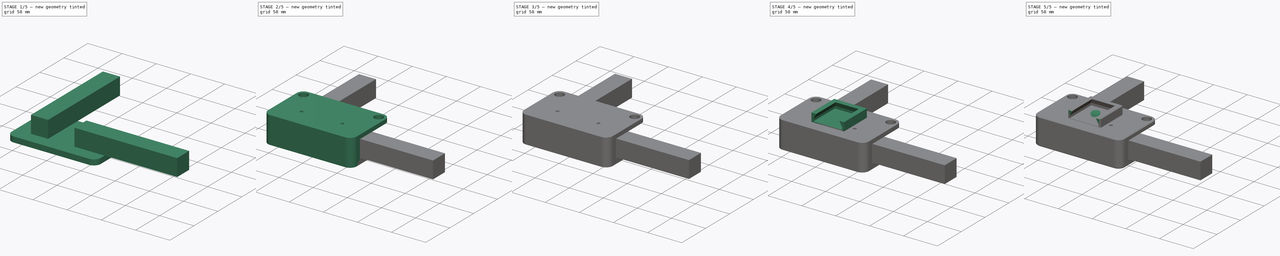
[diagram: build sequence overview — one tinted view per stage of 5, left to right]
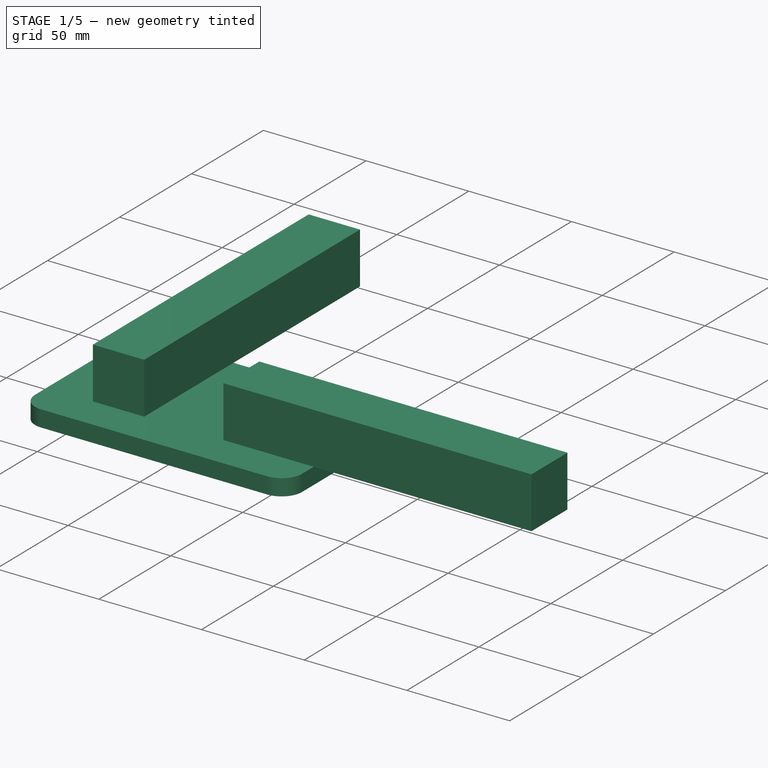
[diagram: stage 1 of 5 — iso view after this stage's code; geometry added in this stage tinted green]
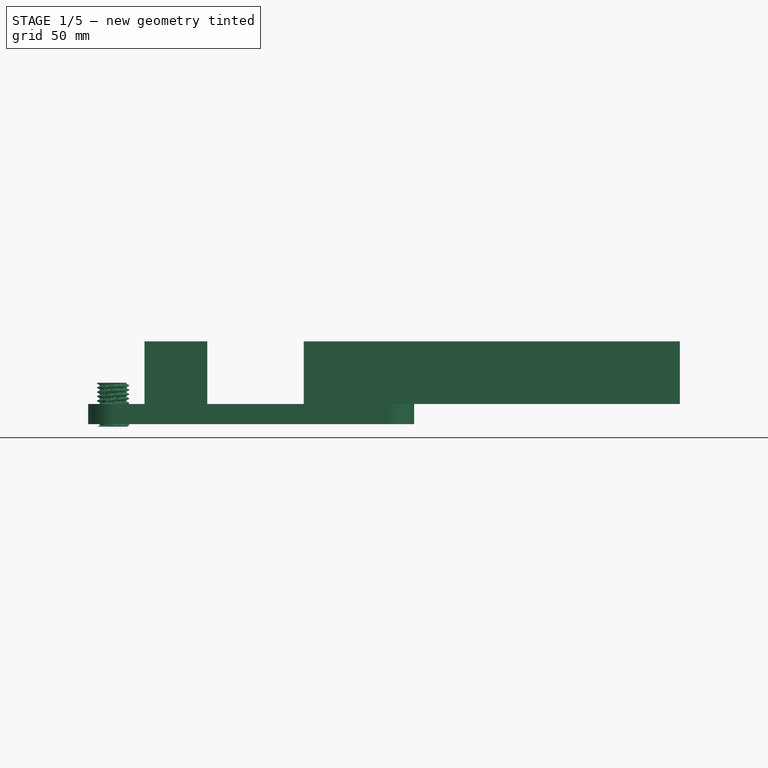
[diagram: stage 1 of 5 — front view after this stage's code; geometry added in this stage tinted green]
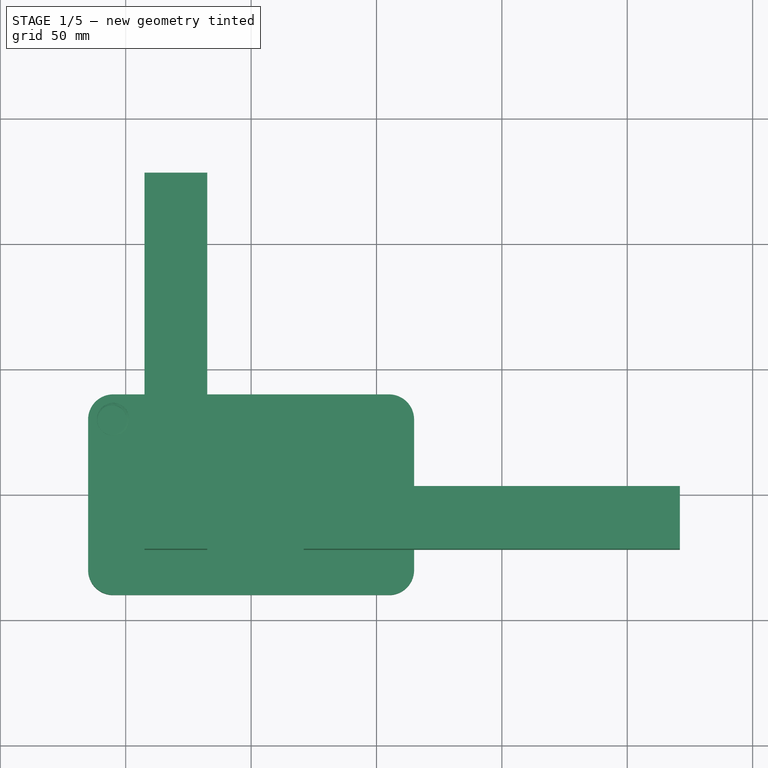
[diagram: stage 1 of 5 — top view after this stage's code; geometry added in this stage tinted green]
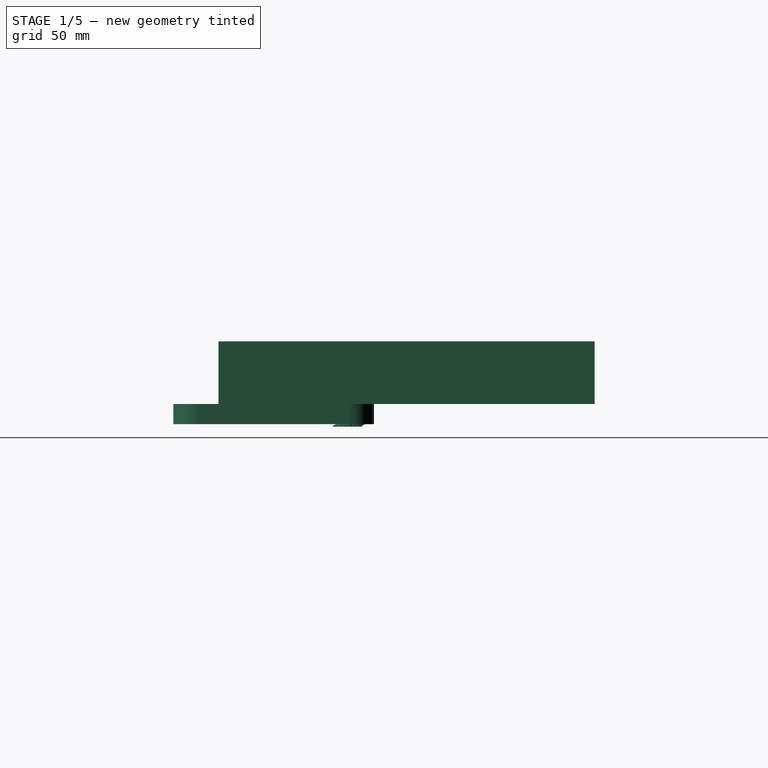
[diagram: stage 1 of 5 — right view after this stage's code; geometry added in this stage tinted green]
FCSTD DOCUMENT  (FreeCAD 0.19R22960 (Git))
Label: arm mount
License: All rights reserved
LicenseURL: http://en.wikipedia.org/wiki/All_rights_reserved
objects: Sketcher::SketchObject×9, PartDesign::Pad×6, PartDesign::Body×4, PartDesign::Mirrored×3, Part::Box×3, Part::FeaturePython×3, Part::Cut×3, PartDesign::Pocket×2, Part::MultiFuse×2, Part::Part2DObjectPython×2, Part::Helix×2, PartDesign::AdditiveLoft×1, Spreadsheet::Sheet×1, PartDesign::FeatureBase×1, Part::Offset×1, PartDesign::Plane×1, PartDesign::PolarPattern×1, PartDesign::ShapeBinder×1, PartDesign::AdditivePipe×1, Part::Sweep×1, +1 more types
note: 58 computed .brp shape members not serialized (recipe doc carries the construction recipe); baked Part::Feature solids carry a one-line shape summary decoded from their .brp

FEATURE [PartDesign::Body] Body001  label="Body003"
  BaseFeature = -> Body
  Group = -> [Clone]
  Origin = -> Origin
  Tip = -> Clone
FEATURE [Sketcher::SketchObject] Sketch002
  MapMode = 5
  Support = -> [XY_Plane002]
  sketch-geometry (8):
    g0: LineSegment StartX=-55 StartY=40 StartZ=0 EndX=55 EndY=40 EndZ=0
    g1: LineSegment StartX=65 StartY=30 StartZ=0 EndX=65 EndY=-30 EndZ=0
    g2: LineSegment StartX=55 StartY=-40 StartZ=0 EndX=-55 EndY=-40 EndZ=0
    g3: LineSegment StartX=-65 StartY=-30 StartZ=0 EndX=-65 EndY=30 EndZ=0
    g4: ArcOfCircle CenterX=-55 CenterY=30 CenterZ=0 NormalX=0 NormalY=0 NormalZ=1 AngleXU=0 Radius=10 StartAngle=1.5708 EndAngle=3.14159
    g5: ArcOfCircle CenterX=55 CenterY=30 CenterZ=0 NormalX=0 NormalY=0 NormalZ=1 AngleXU=0 Radius=10 StartAngle=0 EndAngle=1.5708
    g6: ArcOfCircle CenterX=55 CenterY=-30 CenterZ=0 NormalX=0 NormalY=0 NormalZ=1 AngleXU=0 Radius=10 StartAngle=4.71239 EndAngle=6.28319
    g7: ArcOfCircle CenterX=-55 CenterY=-30 CenterZ=0 NormalX=0 NormalY=0 NormalZ=1 AngleXU=0 Radius=10 StartAngle=3.14159 EndAngle=4.71239
  constraints (18):
    c: Horizontal(g2)
    c: Vertical(g1)
    c: Vertical(g3)
    c: Tangent(g3,g4) = 1.5708
    c: Tangent(g0,g4) = 1.5708
    c: Tangent(g0,g5) = 1.5708
    c: Tangent(g1,g5) = 1.5708
    c: Tangent(g1,g6) = 1.5708
    c: Tangent(g2,g6) = 1.5708
    c: Tangent(g2,g7) = 1.5708
    c: Tangent(g3,g7) = 1.5708
    c: Equal(g4,g7)
    c: Equal(g7,g6)
    c: Symmetric(g2,g0,g-1)
    c: Symmetric(g0,g0,g-2)
    c: DistanceX(g3,g1) = 130
    c: DistanceY(g2,g0) = 80
    c: Radius(g5) = 10
FEATURE [PartDesign::Pad] Pad001
  Direction = (1,1,1)
  Length = 8
  Length2 = 100
  Profile = -> Sketch002
  Refine = true
  Type = 0
FEATURE [Sketcher::SketchObject] Sketch003
  MapMode = 5
  Support = -> [XY_Plane002]
  sketch-geometry (1):
    g0: Circle CenterX=-30 CenterY=-10 CenterZ=0 NormalX=0 NormalY=0 NormalZ=1 AngleXU=0 Radius=1.9
  constraints (3):
    c: Diameter(g0) = 3.8
    c: DistanceX(g0) = -30
    c: DistanceY(g0) = -10
FEATURE [PartDesign::Pocket] Pocket
  BaseFeature = -> Pad001
  Length = 5
  Length2 = 100
  Profile = -> Sketch003
  Refine = true
  Reversed = true
  Type = 1
FEATURE [PartDesign::Body] Body003  label="button"
  Group = -> [Sketch008,Pad005,DatumPlane001,Sketch007,Pad004,PolarPattern,VThreadProfile,AdditivePipe]
  Origin = -> Origin003
  Placement = pos=(-85.5,0,0) rot=(0,0,1;0rad)
  Tip = -> AdditivePipe
FEATURE [Part::Part2DObjectPython] VThreadProfile001  # Draft 2D object (typed FeaturePython)
  Area = 89.3381
  Closed = true
  Continuity = C3
  Instructions = Expand this with the ... button to view instructions | Sweep this object along a helix of the same pitch to produce your thread. | It is recommended to make the helix in the ThreadProfile workbench. | If there is an active Body the ThreadProfile object will be put into it.,If not it can be dragged and dropped into the body later. | If there is an active Body when the helix is made there will be made a ShapeBinder for it | For internal threads you will need to cut the Sweep object out of a cylinder, or if using Part Design sweep it as a Subtractive Pipe. | Always use Frenet mode | I have provided some presets, but it is possible there could be some errors.  Double check for mission critical applications. | Also, the tolerances might be different from what you wish to have.  I believe the internal minor diameters are all minimum and the external are all maximum.
  InternalOrExternal = 1
  MakeFace = true
  MinorDiameter = 9.853
  Parameterization = 1
  Pitch = 1.75
  Points = (719) [(4.92219,0.0430151,0),(4.91768,0.0859578,0),(4.91295,0.128829,0),(4.90799,0.171629,0),(4.90279,0.214358,0),(4.89733,0.257016,0),(4.89163,0.299602,0),+712 more]
  Presets = 22
  Quality = 1
  ThreadCount = 10
  Version = 1.66
  external_data = [-0.00235387,-0.00461052,-0.00677828,-0.00886428,-0.0108747,-0.0128149,-0.0146895,-0.0165028,-0.0182584,-0.0199597,-0.0216095,-0.0232106,-0.0247653,-0.0262759,-0.0277444,-0.0291725,-0.0305621,-0.0319145,-0.0332313,-0.0345138,-0.0357632,+698 more]
  internal_data = [0,0,0,0,0,0,0,0,0,0,0,0,0,0,0,0,0,0,0,0,0,0,0,0,0,0,0,0,0,0,0,0,0,0,0,0,0,0,0,0,0,0,0,0,0,0,0,0,0,0,0,0,0,0,0,0,0,0,0,0,0,0,0,0,0,0,0,0,0,0,0,0,0,0,0,0,0,0,0,0,0,0,0,0,0,0,0,0,0,0,0,0,0,0,0,0,0,0,0,0,0,0,0,0,0,0,0,0,0,0,0,0,0,0,0,0,0,0,0,0,+599 more]
  preset_names = <blob: 3959 chars omitted>
  presets_data = [0,0,0,2.20878,24.1173,24.6888,0.25,0.693,0.729,0.25,0.793,0.829,0.25,0.893,0.929,0.3,1.032,1.075,0.35,1.171,1.221,0.35,1.371,1.421,0.4,1.509,1.567,0.45,1.648,1.713,0.45,1.948,2.013,0.5,2.387,2.459,0.6,2.764,2.85,0.7,3.141,3.242,0.75,3.58,+712 more]
FEATURE [Part::Helix] Helix001
  Angle = 0
  AttacherType = Attacher::AttachEngine3D
  Height = 17.5
  LocalCoord = 0
  Pitch = 1.75
  Radius = 1
  Style = 0
  expr: Pitch = VThreadProfile001.Pitch
  expr: Height = VThreadProfile001.ThreadCount * VThreadProfile001.Pitch
  expr: .Placement.Base.x = VThreadProfile001.Placement.Base.x
  expr: .Placement.Base.y = VThreadProfile001.Placement.Base.y
  expr: .Placement.Base.z = VThreadProfile001.Placement.Base.z
  expr: .Placement.Rotation.Angle = VThreadProfile001.Placement.Rotation.Angle
  expr: .Placement.Rotation.Axis.x = VThreadProfile001.Placement.Rotation.Axis.x
  expr: .Placement.Rotation.Axis.y = VThreadProfile001.Placement.Rotation.Axis.y
  expr: .Placement.Rotation.Axis.z = VThreadProfile001.Placement.Rotation.Axis.z
FEATURE [Part::Sweep] Sweep  label="M12 screw"
  Frenet = true
  Sections = -> [VThreadProfile001]
  Solid = true
  Spine = -> Helix001 [Edge1,Edge2,Edge3,Edge4,Edge5,Edge6,Edge7,Edge8,Edge9,Edge10]
  Transition = 1
FEATURE [Part::FeaturePython] Clone002  label="M6 screw hole"  # Draft clone (typed FeaturePython)
  AttacherType = Attacher::AttachEngine3D
  Fuse = false
  Objects = -> [Sweep]
  Placement = pos=(-55,30,-1) rot=(0,0,1;0rad)
  Scale = (1.1,1.1,1)
FEATURE [Part::Box] Box001  label="rod"
  AttacherType = Attacher::AttachEngine3D
  Height = 25
  Length = 150
  Placement = pos=(21,-22,8) rot=(0,0,1;0rad)
  Width = 25
FEATURE [Part::Box] Box002  label="rod001"
  AttacherType = Attacher::AttachEngine3D
  Height = 25
  Length = 150
  Placement = pos=(-17.5,-22,8) rot=(0,0,1;1.5708rad)
  Width = 25
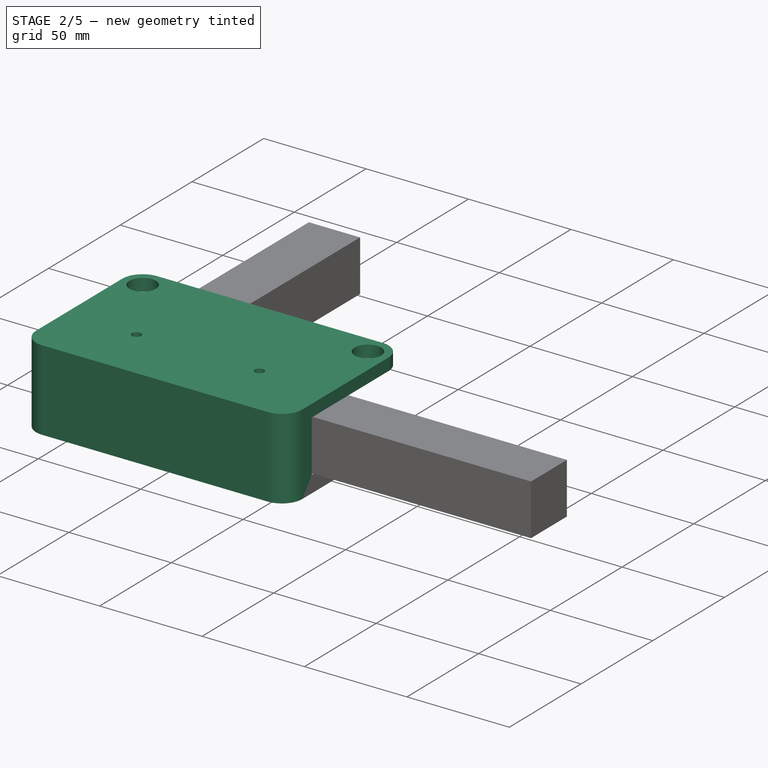
[diagram: stage 2 of 5 — iso view after this stage's code; geometry added in this stage tinted green]
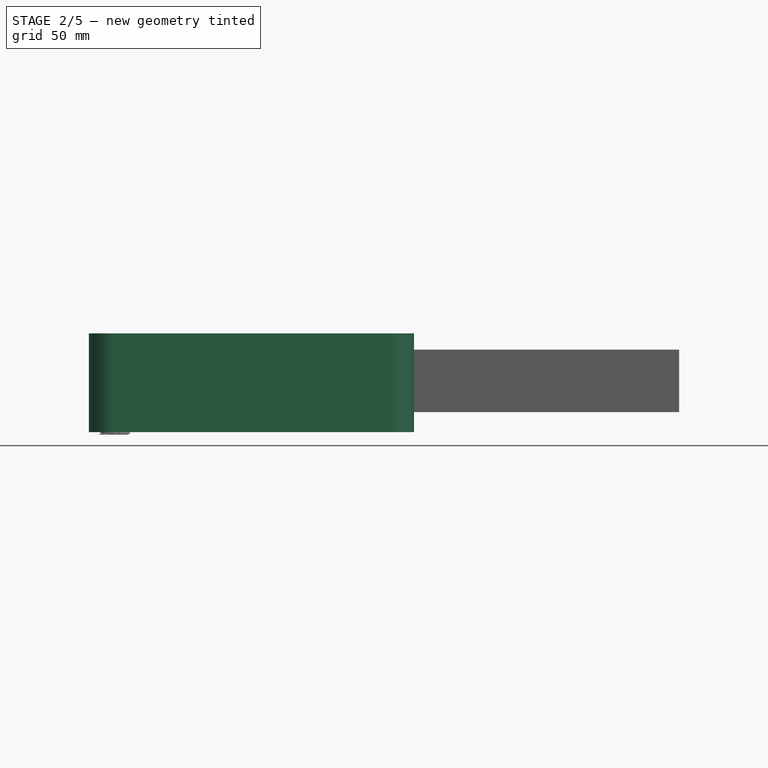
[diagram: stage 2 of 5 — front view after this stage's code; geometry added in this stage tinted green]
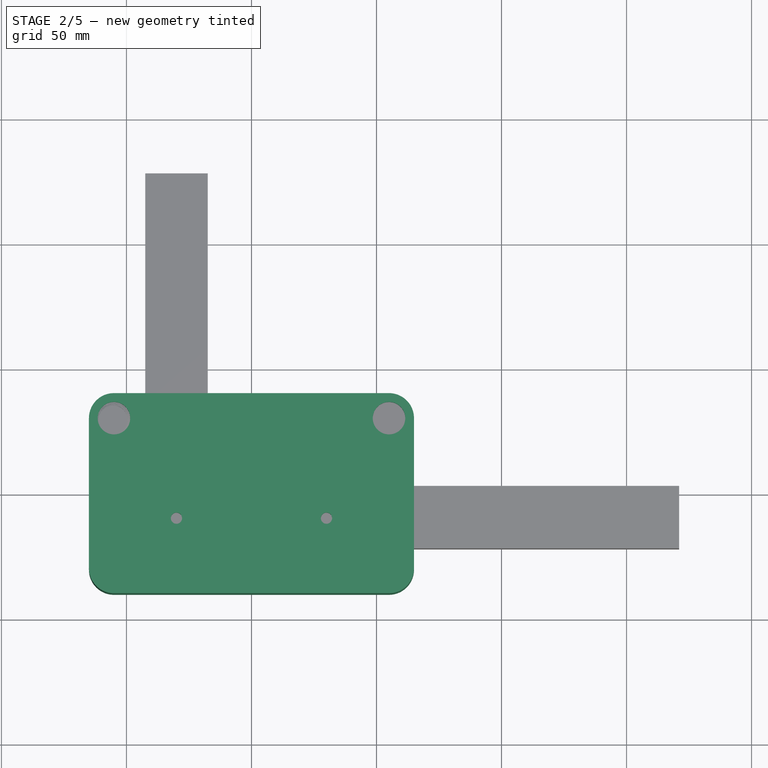
[diagram: stage 2 of 5 — top view after this stage's code; geometry added in this stage tinted green]
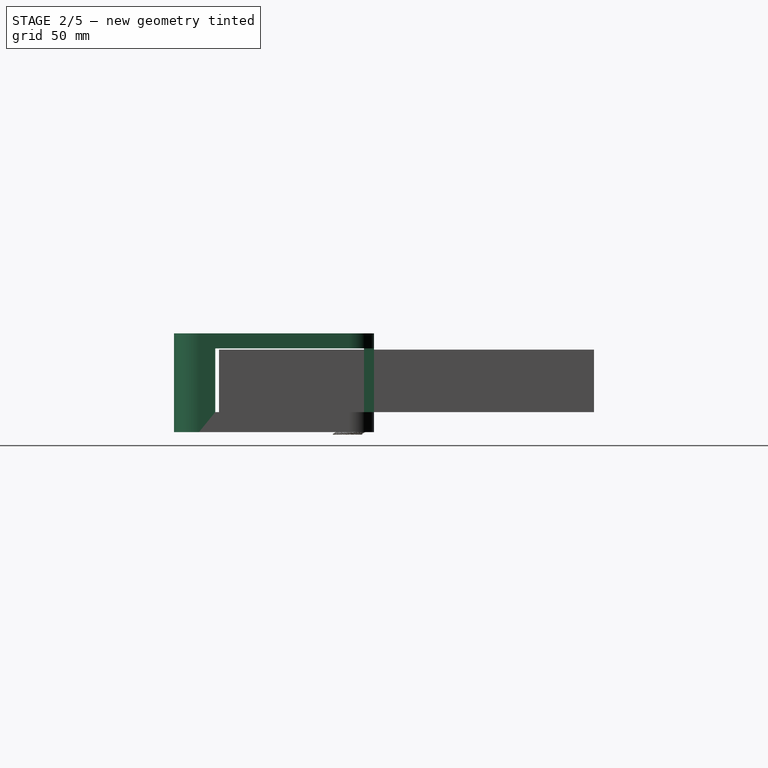
[diagram: stage 2 of 5 — right view after this stage's code; geometry added in this stage tinted green]
FEATURE [PartDesign::Mirrored] Mirrored
  BaseFeature = -> Pocket
  MirrorPlane = -> Sketch003 [V_Axis]
  Originals = -> [Pocket]
  Refine = true
FEATURE [Sketcher::SketchObject] Sketch004
  AttachmentOffset = pos=(0,0,8) rot=(0,0,1;0rad)
  ExternalGeometry = -> [Mirrored]
  MapMode = 5
  Placement = pos=(0,0,8) rot=(0,0,1;0rad)
  Support = -> [XY_Plane002]
  expr: .AttachmentOffset.Base.z = Pad001.Length
  expr: Constraints[28] = .Constraints.hole_clearance
  sketch-geometry (12):
    g0: ArcOfCircle CenterX=-55 CenterY=-30 CenterZ=0 NormalX=0 NormalY=0 NormalZ=1 AngleXU=0 Radius=10 StartAngle=3.14159 EndAngle=4.71239
    g1: ArcOfCircle CenterX=-51 CenterY=-26 CenterZ=0 NormalX=0 NormalY=0 NormalZ=1 AngleXU=0 Radius=10 StartAngle=3.14159 EndAngle=4.71239
    g2: LineSegment StartX=-65 StartY=-30 StartZ=0 EndX=-65 EndY=-23.5 EndZ=0
    g3: LineSegment StartX=-65 StartY=-23.5 StartZ=0 EndX=-61 EndY=-23.5 EndZ=0
    g4: LineSegment StartX=-61 StartY=-23.5 StartZ=0 EndX=-61 EndY=-26 EndZ=0
    g5: LineSegment StartX=-55 StartY=-40 StartZ=0 EndX=0 EndY=-40 EndZ=0
    g6: LineSegment StartX=0 StartY=-40 StartZ=0 EndX=0 EndY=-36 EndZ=0
    g7: LineSegment StartX=0 StartY=-36 StartZ=0 EndX=-51 EndY=-36 EndZ=0
    g8: LineSegment StartX=0 StartY=40 StartZ=0 EndX=-16.5 EndY=40 EndZ=0
    g9: LineSegment StartX=-16.5 StartY=40 StartZ=0 EndX=-16.5 EndY=36 EndZ=0
    g10: LineSegment StartX=-16.5 StartY=36 StartZ=0 EndX=0 EndY=36 EndZ=0
    g11: LineSegment StartX=0 StartY=36 StartZ=0 EndX=0 EndY=40 EndZ=0
  constraints (32):
    c: Coincident(g0,g-4)
    c: Coincident(g0,g-3)
    c: Equal(g-6,g0)
    c: Tangent(g0,g2) = 1.5708
    c: Coincident(g2,g3)
    c: Coincident(g3,g4)
    c: Vertical(g4)
    c: Horizontal(g3)
    c: Tangent(g0,g5) = -1.5708
    c: Coincident(g5,g6)
    c: PointOnObject(g6,g-2)
    c: Vertical(g6)
    c: Coincident(g6,g7)
    c: Horizontal(g7)
    c: DistanceY(g5,g6) = 4
    c: Equal(g6,g3)
    c: DistanceY(g3,g-7) = 13.5  'hole_clearance'
    c: Coincident(g8,g9)
    c: Coincident(g9,g10)
    c: Coincident(g10,g11)
    c: Coincident(g11,g8)
    c: Horizontal(g8)
    c: Horizontal(g10)
    c: Vertical(g9)
    c: Vertical(g11)
    c: PointOnObject(g8,g-5)
    c: PointOnObject(g8,g-2)
    c: Equal(g11,g6)
    c: DistanceX(g-7,g9) = 13.5
    c: Equal(g1,g0)
    c: Tangent(g7,g1) = 1.5708
    c: Tangent(g4,g1) = -1.5708
FEATURE [PartDesign::Pad] Pad002
  BaseFeature = -> Mirrored
  Direction = (1,1,1)
  Length = 25.5
  Length2 = 100
  Profile = -> Sketch004
  Refine = true
  Type = 0
FEATURE [PartDesign::Mirrored] Mirrored001
  BaseFeature = -> Pad002
  MirrorPlane = -> Sketch004 [V_Axis]
  Originals = -> [Pad002]
  Refine = true
FEATURE [Sketcher::SketchObject] Sketch005
  AttachmentOffset = pos=(0,0,33.5) rot=(0,0,1;0rad)
  ExternalGeometry = -> [Mirrored001]
  MapMode = 5
  Placement = pos=(0,0,33.5) rot=(0,0,1;0rad)
  Support = -> [XY_Plane002]
  expr: .AttachmentOffset.Base.z = Pad001.Length + Pad002.Length
  sketch-geometry (8):
    g0: LineSegment StartX=-55 StartY=40 StartZ=0 EndX=55 EndY=40 EndZ=0
    g1: LineSegment StartX=55 StartY=-40 StartZ=0 EndX=-55 EndY=-40 EndZ=0
    g2: ArcOfCircle CenterX=-55 CenterY=30 CenterZ=0 NormalX=0 NormalY=0 NormalZ=1 AngleXU=0 Radius=10 StartAngle=1.5708 EndAngle=3.14159
    g3: ArcOfCircle CenterX=55 CenterY=30 CenterZ=0 NormalX=0 NormalY=0 NormalZ=1 AngleXU=0 Radius=10 StartAngle=0 EndAngle=1.5708
    g4: ArcOfCircle CenterX=55 CenterY=-30 CenterZ=0 NormalX=0 NormalY=0 NormalZ=1 AngleXU=0 Radius=10 StartAngle=4.71239 EndAngle=6.28319
    g5: ArcOfCircle CenterX=-55 CenterY=-30 CenterZ=0 NormalX=0 NormalY=0 NormalZ=1 AngleXU=0 Radius=10 StartAngle=3.14159 EndAngle=4.71239
    g6: LineSegment StartX=65 StartY=30 StartZ=0 EndX=65 EndY=-30 EndZ=0
    g7: LineSegment StartX=-65 StartY=30 StartZ=0 EndX=-65 EndY=-30 EndZ=0
  constraints (20):
    c: Coincident(g0,g-3)
    c: Coincident(g0,g-5)
    c: Coincident(g1,g-6)
    c: Coincident(g1,g-6)
    c: Coincident(g2,g0)
    c: Coincident(g3,g0)
    c: Coincident(g4,g1)
    c: Coincident(g4,g-8)
    c: Coincident(g5,g1)
    c: Coincident(g5,g-7)
    c: Equal(g4,g5)
    c: Equal(g5,g2)
    c: Equal(g2,g3)
    c: Equal(g3,g-5)
    c: Coincident(g2,g-7)
    c: Coincident(g3,g-8)
    c: Coincident(g6,g3)
    c: Coincident(g6,g4)
    c: Coincident(g7,g2)
    c: Coincident(g7,g5)
FEATURE [PartDesign::Pad] Pad003
  BaseFeature = -> Mirrored001
  Direction = (1,1,1)
  Length = 6
  Length2 = 100
  Profile = -> Sketch005
  Refine = true
  Type = 0
FEATURE [Sketcher::SketchObject] Sketch006
  AttachmentOffset = pos=(0,0,39.5) rot=(0,0,1;0rad)
  ExternalGeometry = -> [Pad003]
  MapMode = 5
  Placement = pos=(0,0,39.5) rot=(0,0,1;0rad)
  Support = -> [XY_Plane002]
  expr: .AttachmentOffset.Base.z = Pad001.Length + Pad002.Length + Pad003.Length
  sketch-geometry (2):
    g0: Circle CenterX=-30 CenterY=-10 CenterZ=0 NormalX=0 NormalY=0 NormalZ=1 AngleXU=0 Radius=2.25
    g1: Circle CenterX=-55 CenterY=30 CenterZ=0 NormalX=0 NormalY=0 NormalZ=1 AngleXU=0 Radius=6.5
  constraints (6):
    c: Coincident(g0,g-3)
    c: Diameter(g0) = 4.5
    c: Coincident(g1,g-4)
    c: Diameter(g1) = 13
    c: DistanceX(g1,g-1) = 55
    c: DistanceY(g-1,g1) = 30
FEATURE [PartDesign::Pocket] Pocket001
  BaseFeature = -> Pad003
  Length = 5
  Length2 = 100
  Profile = -> Sketch006
  Refine = true
  Type = 2
FEATURE [PartDesign::Mirrored] Mirrored002
  BaseFeature = -> Pocket001
  MirrorPlane = -> Sketch006 [V_Axis]
  Originals = -> [Pocket001]
  Refine = true
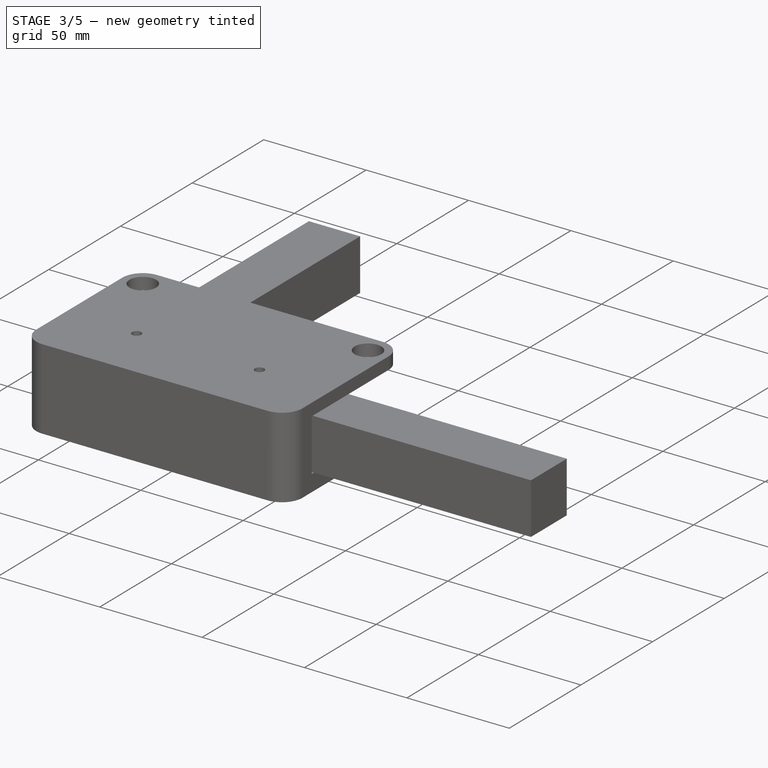
[diagram: stage 3 of 5 — iso view after this stage's code; geometry added in this stage tinted green]
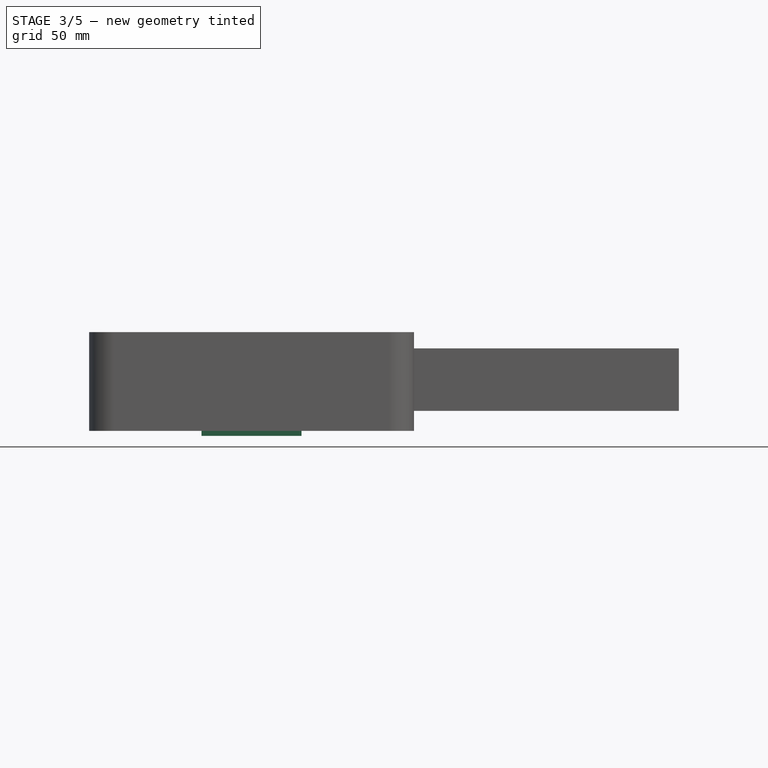
[diagram: stage 3 of 5 — front view after this stage's code; geometry added in this stage tinted green]
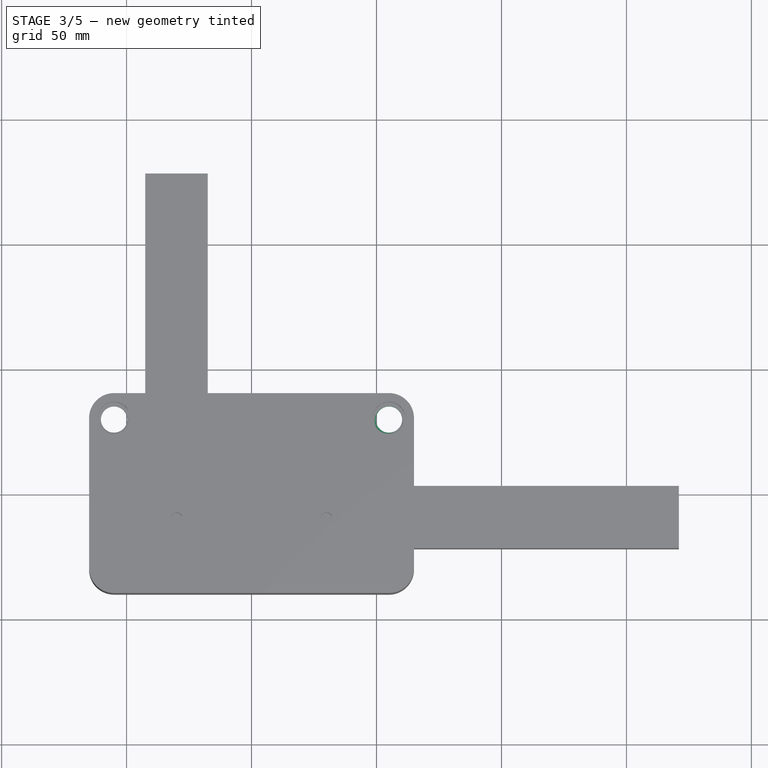
[diagram: stage 3 of 5 — top view after this stage's code; geometry added in this stage tinted green]
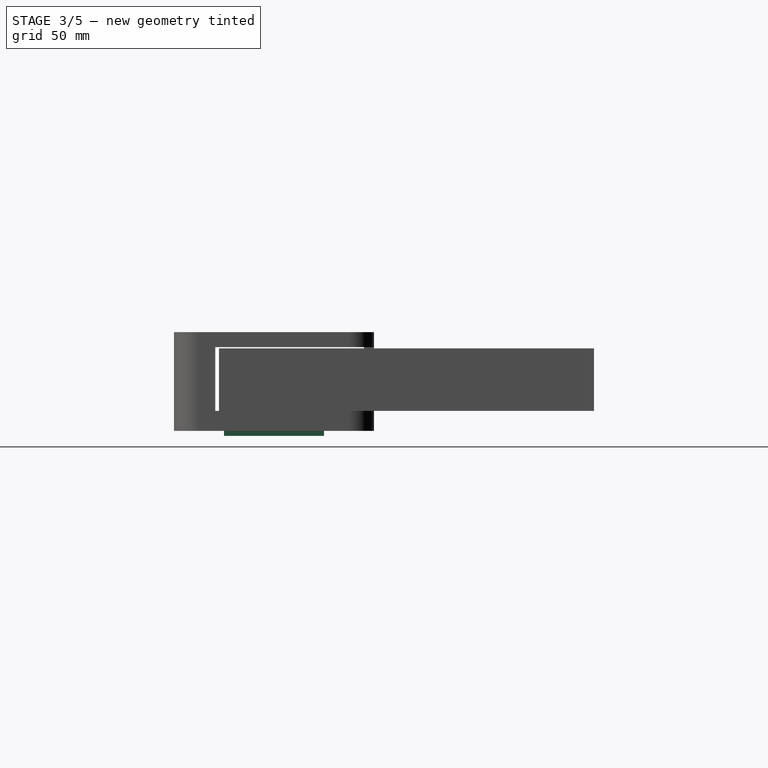
[diagram: stage 3 of 5 — right view after this stage's code; geometry added in this stage tinted green]
FEATURE [Sketcher::SketchObject] Sketch001  label="lock raise sk"
  AttachmentOffset = pos=(0,0,7) rot=(0,0,1;0rad)
  MapMode = 5
  Placement = pos=(0,0,7) rot=(0,0,1;0rad)
  Support = -> [XY_Plane001]
  expr: .AttachmentOffset.Base.z = <<dim>>.lock_raise_z
  expr: Constraints[9] = <<dim>>.lock_raise_x
  expr: Constraints[10] = <<dim>>.lock_raise_y
  sketch-geometry (4):
    g0: LineSegment StartX=-16 StartY=16 StartZ=0 EndX=16 EndY=16 EndZ=0
    g1: LineSegment StartX=16 StartY=16 StartZ=0 EndX=16 EndY=-16 EndZ=0
    g2: LineSegment StartX=16 StartY=-16 StartZ=0 EndX=-16 EndY=-16 EndZ=0
    g3: LineSegment StartX=-16 StartY=-16 StartZ=0 EndX=-16 EndY=16 EndZ=0
  constraints (11):
    c: Coincident(g0,g1)
    c: Coincident(g1,g2)
    c: Coincident(g2,g3)
    c: Coincident(g3,g0)
    c: Horizontal(g0)
    c: Horizontal(g2)
    c: Vertical(g1)
    c: Vertical(g3)
    c: Symmetric(g0,g1,g-1)
    c: DistanceX(g0,g0) = 32
    c: DistanceY(g1,g1) = 32
FEATURE [Sketcher::SketchObject] Sketch  label="lock base sk"
  MapMode = 5
  Support = -> [XY_Plane001]
  expr: Constraints[9] = <<dim>>.lock_base_x
  expr: Constraints[10] = <<dim>>.lock_base_y
  sketch-geometry (4):
    g0: LineSegment StartX=-20 StartY=20 StartZ=0 EndX=20 EndY=20 EndZ=0
    g1: LineSegment StartX=20 StartY=20 StartZ=0 EndX=20 EndY=-20 EndZ=0
    g2: LineSegment StartX=20 StartY=-20 StartZ=0 EndX=-20 EndY=-20 EndZ=0
    g3: LineSegment StartX=-20 StartY=-20 StartZ=0 EndX=-20 EndY=20 EndZ=0
  constraints (11):
    c: Coincident(g0,g1)
    c: Coincident(g1,g2)
    c: Coincident(g2,g3)
    c: Coincident(g3,g0)
    c: Horizontal(g0)
    c: Horizontal(g2)
    c: Vertical(g1)
    c: Vertical(g3)
    c: Symmetric(g0,g1,g-1)
    c: DistanceX(g0,g0) = 40
    c: DistanceY(g1,g1) = 40
FEATURE [PartDesign::Pad] Pad  label="lock base"
  Direction = (1,1,1)
  Length = 2
  Length2 = 100
  Profile = -> Sketch
  Refine = true
  Reversed = true
  Type = 0
  expr: Length = <<dim>>.lock_base_z
FEATURE [PartDesign::AdditiveLoft] AdditiveLoft  label="lock raise"
  BaseFeature = -> Pad
  Closed = true
  Profile = -> Sketch
  Refine = true
  Ruled = true
  Sections = -> [Sketch001]
FEATURE [Part::FeaturePython] Clone003  label="M6 screw hole001"  # Draft clone (typed FeaturePython)
  AttacherType = Attacher::AttachEngine3D
  Fuse = false
  Objects = -> [Clone002]
  Placement = pos=(55,30,-1) rot=(0,0,1;0rad)
  Scale = (1,1,1)
FEATURE [Part::Cut] Cut001
  Base = -> Body002
  Refine = true
  Tool = -> Clone002
FEATURE [Part::Cut] Cut002  label="arm body"
  Base = -> Cut001
  Refine = true
  Tool = -> Clone003
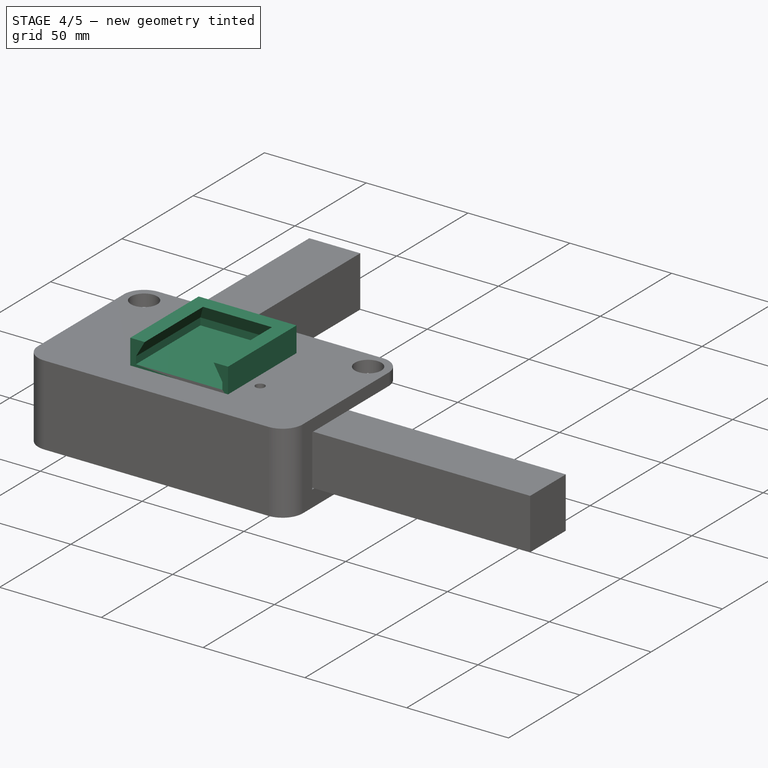
[diagram: stage 4 of 5 — iso view after this stage's code; geometry added in this stage tinted green]
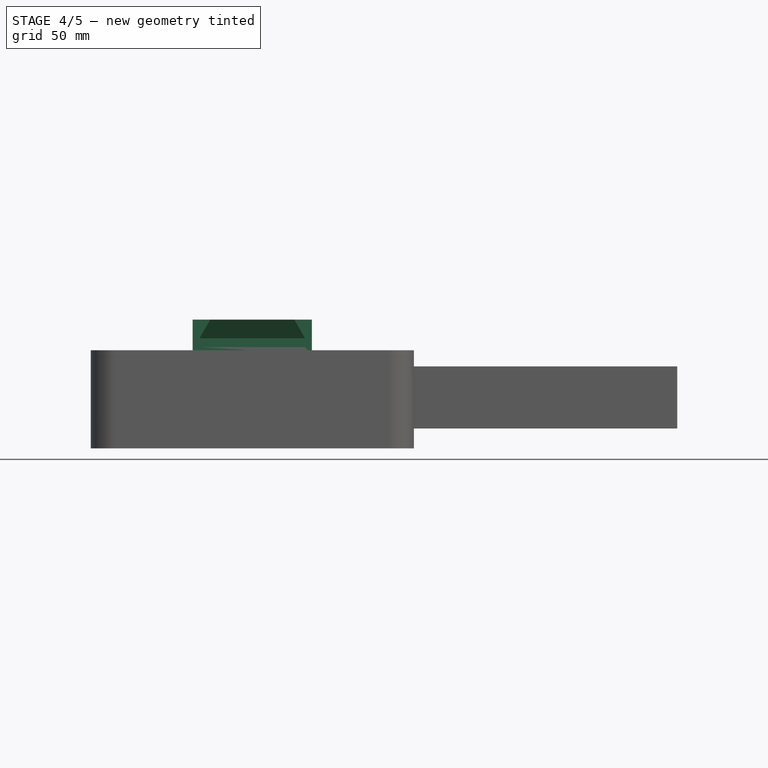
[diagram: stage 4 of 5 — front view after this stage's code; geometry added in this stage tinted green]
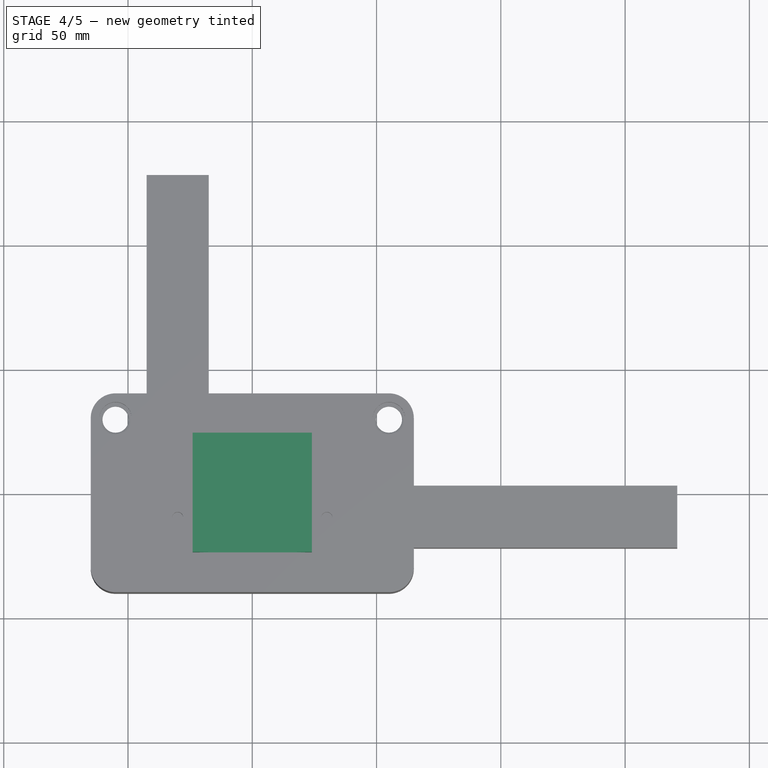
[diagram: stage 4 of 5 — top view after this stage's code; geometry added in this stage tinted green]
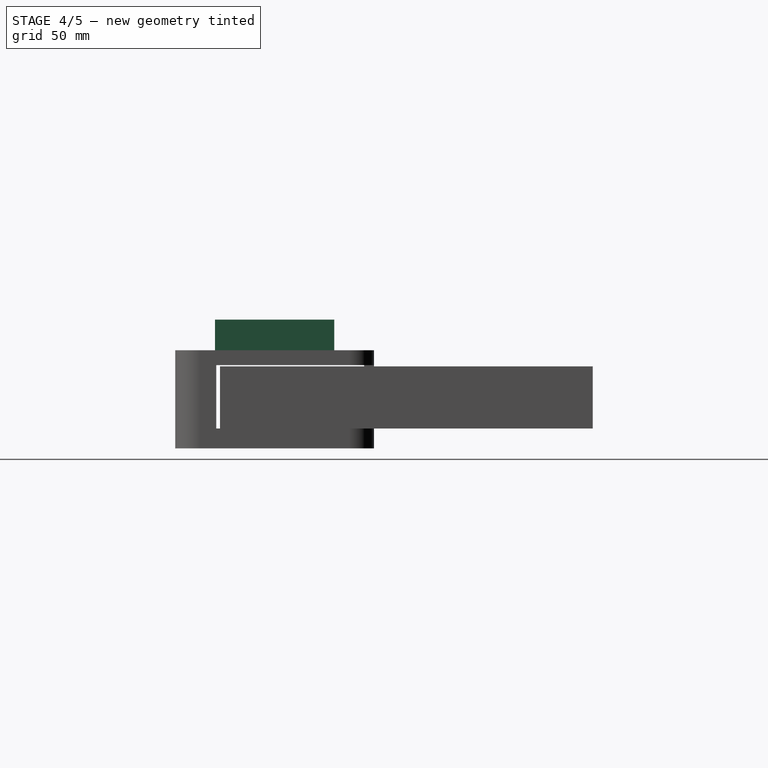
[diagram: stage 4 of 5 — right view after this stage's code; geometry added in this stage tinted green]
FEATURE [PartDesign::Body] Body  label="lock"
  Group = -> [Sketch,Pad,Sketch001,AdditiveLoft]
  Origin = -> Origin001
  Placement = pos=(0,0,-7) rot=(0,0,1;0rad)
  Tip = -> AdditiveLoft
  expr: .Placement.Base.z = -<<dim>>.lock_raise_z
FEATURE [Spreadsheet::Sheet] Spreadsheet  label="dim"
  cells = A2=LOCK; A3=base X; B3(lock_base_x)=40; A4=base Y; B4(lock_base_y)=40; A5=base Z; B5(lock_base_z)=2; A6=raise X; B6(lock_raise_x)=32; A7=raise Y; B7(lock_raise_y)=32; A8=raise Z; B8(lock_raise_z)=7; A10=PIPE MOUNT; A11=pipe dia; B11(pipe_dia)==pipe_out_d + 0.5; A12=pipe outer dia; B12(pipe_out_d)=20; A13=pipe inner dia; B13(pipe_inner_d)=18.2; A14=pipe dist; B14(pipe_dist)=10; A15=(pipe outside); B15(pipe_outside)==pipe_dist / 2; A16=mount X; B16(pipe_mount_x)==2 * pipe_dia + pipe_dist + 2 * pipe_outside; A17=mount Y; B17(pipe_mount_y)==lock_base_y; A18=mount base Z; B18(pipe_mount_base_z)=4; A19=mount pipe Z; B19(pipe_mount_pipe_z)==pipe_dia / 2 - 1; A21=PIPE SLIDER; A22=thickness; B22(pipe_slider_thickness)=2.5; A23=width; B23(pipe_slider_width)=40; A25=MOUNT SCREW; A26=M6 head circumradius; B26(mount_screw_M6_head_circrad)=11.3; A27=M6 head depth; B27(mount_screw_M6_head_depth)=5; A28=M6 shank diameter; B28(mount_screw_M6_shank_d)=6.7; A29=M5 head circumradius; B29(mount_screw_M5_head_circrad)=8.9; A30=M5 head depth; B30(mount_screw_M5_head_depth)=4; A31=M5 shank diameter; B31(mount_screw_M5_shank_d)=5; A33=BUTTON; A34=inner diameter; B34(button_d_in)=15; A35=outer diameter; B35(button_d_out)=25; A36=height; B36(button_h)=15; A38=PIPE CAP; A39=thickness; B39(pipe_cap_thick)=2; A40=bridge; B40(pipe_cap_bridge)==pipe_dia * 3 / 4; A41=depth; B41(pipe_cap_depth)=10; A42=gap; B42(pipe_cap_gap)=1; A44=IPAD; A45=height; B45(ipad_height)=169; A46=thickness; B46(ipad_thick)=8; A48=IPAD GRAB; A49=width; B49(ipad_grab_width)=20; A50=over; B50(ipad_grab_over)=3; A51=thickness; B51(ipad_grab_thick)=3; A52=distance; B52(ipad_grab_distance)=100; A53=undercut; B53(ipad_grab_undercut)=9
FEATURE [PartDesign::FeatureBase] Clone
  BaseFeature = -> Body
FEATURE [PartDesign::Body] Body002
  Group = -> [Sketch002,Pad001,Sketch003,Pocket,Mirrored,Sketch004,Pad002,Mirrored001,Sketch005,Pad003,Sketch006,Pocket001,Mirrored002]
  Origin = -> Origin002
  Tip = -> Mirrored002
FEATURE [Part::Box] Box  label="Cube"
  AttacherType = Attacher::AttachEngine3D
  Height = 14
  Length = 48
  Placement = pos=(-24,-24,-6.2) rot=(0,0,1;0rad)
  Width = 48
  expr: Length = <<dim>>.lock_base_x + 8
  expr: Width = <<dim>>.lock_base_y + 8
  expr: Height = <<dim>>.lock_base_z + <<dim>>.lock_raise_z + 5
  expr: .Placement.Base.z = -<<dim>>.lock_base_z - 4 - 0.2
  expr: .Placement.Base.x = -<<dim>>.lock_base_x / 2 - 4
  expr: .Placement.Base.y = -<<dim>>.lock_base_y / 2 - 4
FEATURE [Part::Offset] Offset
  Fill = false
  Intersection = false
  Join = 2
  Mode = 0
  SelfIntersection = false
  Source = -> Clone
  Value = 1.2
FEATURE [Part::FeaturePython] Clone001  label="Offset001"  # Draft clone (typed FeaturePython)
  AttacherType = Attacher::AttachEngine3D
  Fuse = false
  Objects = -> [Offset]
  Placement = pos=(0,-26,0) rot=(0,0,1;0rad)
  Scale = (1,1,1)
FEATURE [Part::MultiFuse] Fusion
  Refine = true
  Shapes = -> [Clone001,Offset]
FEATURE [Part::Cut] Cut  label="lock hole"
  Base = -> Box
  Placement = pos=(0,0,44) rot=(0,0,1;0rad)
  Refine = true
  Tool = -> Fusion
  expr: .Placement.Base.z = Pad001.Length + Pad002.Length + Pad003.Length + 4.5mm
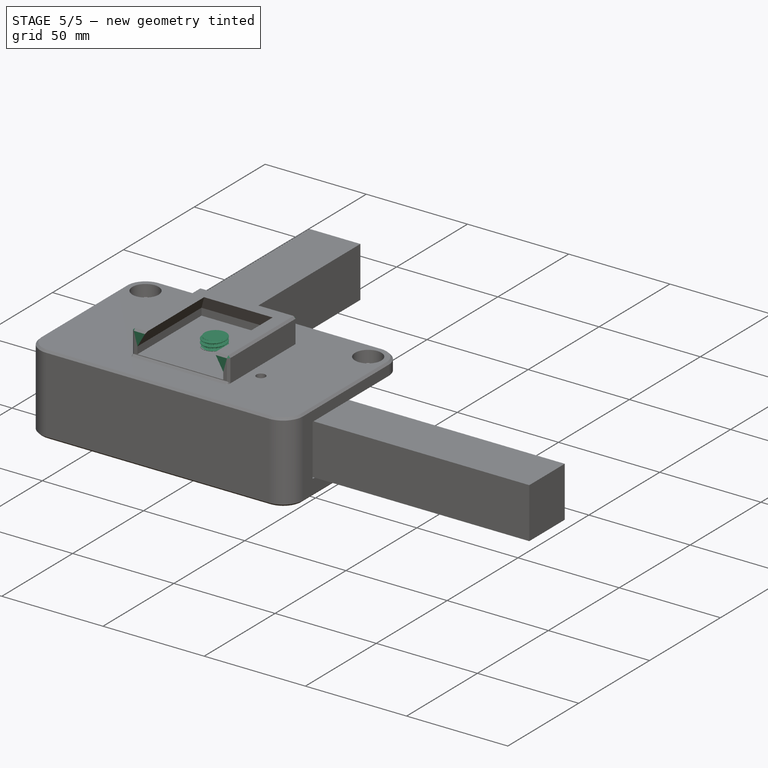
[diagram: stage 5 of 5 — iso view after this stage's code; geometry added in this stage tinted green]
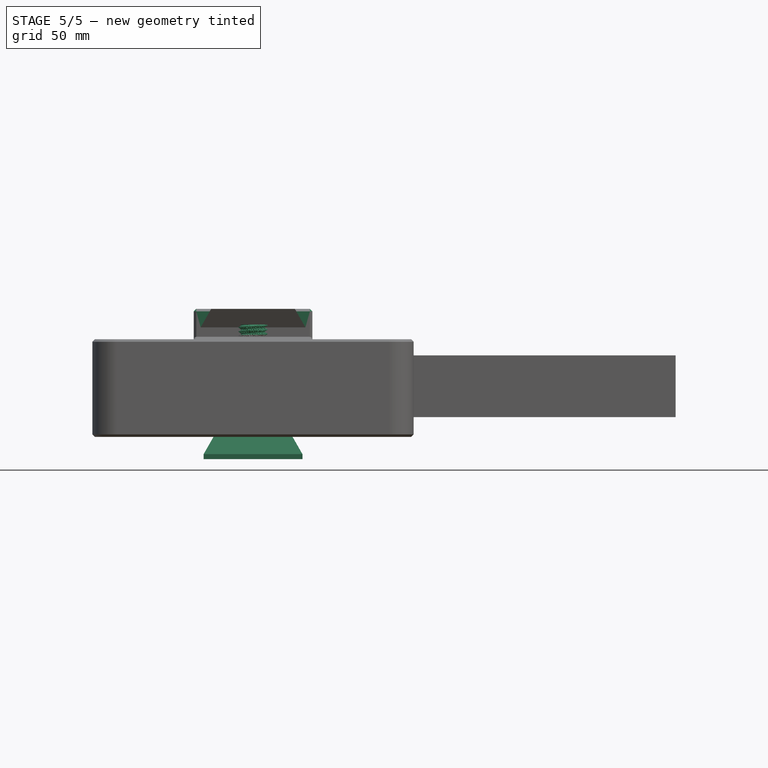
[diagram: stage 5 of 5 — front view after this stage's code; geometry added in this stage tinted green]
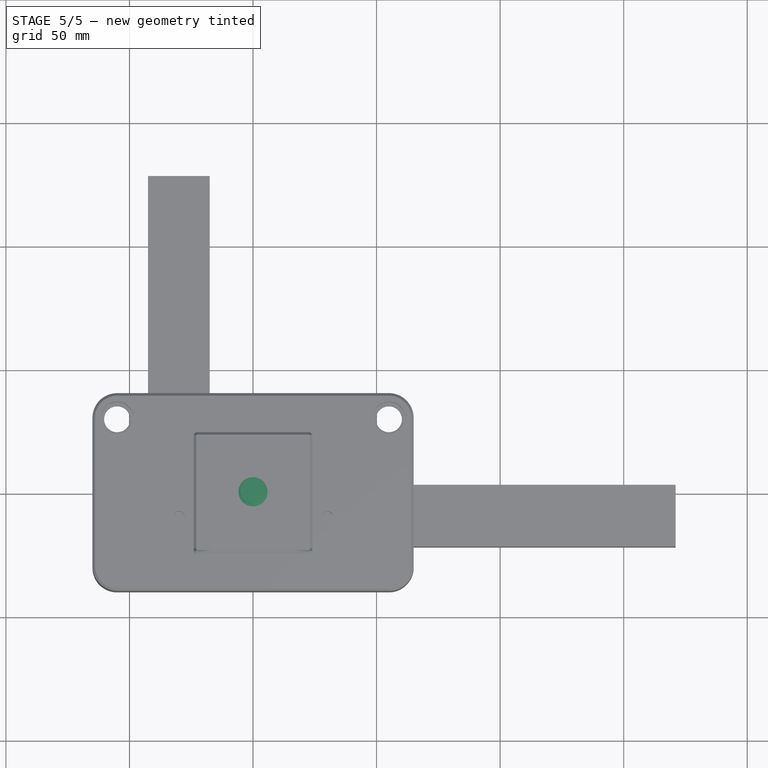
[diagram: stage 5 of 5 — top view after this stage's code; geometry added in this stage tinted green]
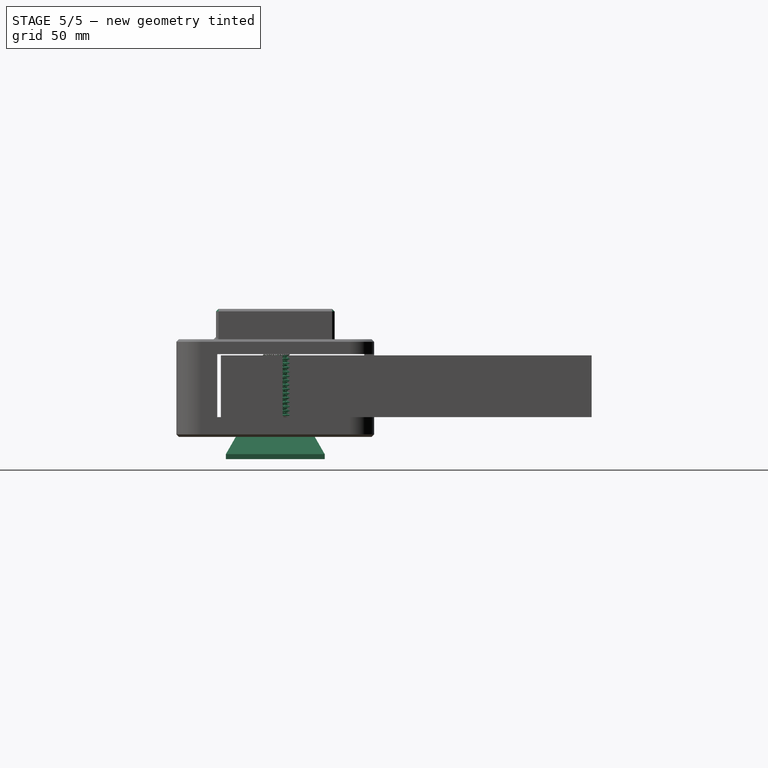
[diagram: stage 5 of 5 — right view after this stage's code; geometry added in this stage tinted green]
FEATURE [Sketcher::SketchObject] Sketch008
  MapMode = 5
  Support = -> [XY_Plane003]
  sketch-geometry (1):
    g0: Circle CenterX=0 CenterY=0 CenterZ=0 NormalX=0 NormalY=0 NormalZ=1 AngleXU=0 Radius=11.5
  constraints (2):
    c: Coincident(g0,g-1)
    c: Radius(g0) = 11.5
FEATURE [PartDesign::Pad] Pad005
  Direction = (1,1,1)
  Length = 6
  Length2 = 100
  Profile = -> Sketch008
  Refine = true
  Type = 0
FEATURE [PartDesign::Plane] DatumPlane001
  Length = 60
  MapMode = 5
  Placement = pos=(0,0,6) rot=(0,0,1;0rad)
  ResizeMode = 0
  Support = -> [Pad005]
  Width = 60
FEATURE [Sketcher::SketchObject] Sketch007
  ExternalGeometry = -> [Pad005]
  MapMode = 5
  Placement = pos=(0,0,6) rot=(0,0,1;0rad)
  Support = -> [DatumPlane001]
  expr: Constraints[5] = 360 / 20
  sketch-geometry (6):
    g0: LineSegment [constr] StartX=0 StartY=0 StartZ=0 EndX=11.3584 EndY=1.799 EndZ=0
    g1: LineSegment [constr] StartX=0 StartY=0 StartZ=0 EndX=11.3584 EndY=-1.799 EndZ=0
    g2: ArcOfCircle CenterX=13.8276 CenterY=2.19007 CenterZ=0 NormalX=0 NormalY=0 NormalZ=1 AngleXU=0 Radius=2.5 StartAngle=3.29867 EndAngle=3.94795
    g3: ArcOfCircle CenterX=13.8276 CenterY=-2.19007 CenterZ=0 NormalX=0 NormalY=0 NormalZ=1 AngleXU=0 Radius=2.5 StartAngle=2.33524 EndAngle=2.98452
    g4: ArcOfCircle CenterX=11.7275 CenterY=0 CenterZ=0 NormalX=0 NormalY=0 NormalZ=1 AngleXU=0 Radius=0.534306 StartAngle=5.47683 EndAngle=7.08954
    g5: LineSegment StartX=11.3584 StartY=1.799 StartZ=0 EndX=11.3584 EndY=-1.799 EndZ=0
  constraints (18):
    c: Coincident(g0,g-1)
    c: PointOnObject(g0,g-3)
    c: Coincident(g1,g-1)
    c: PointOnObject(g1,g-3)
    c: Vertical(g0,g1)
    c: Angle(g1,g0) = 0.314159
    c: Coincident(g2,g0)
    c: Coincident(g3,g1)
    c: Equal(g2,g3)
    c: Tangent(g3,g-3)
    c: Tangent(g-3,g2)
    c: Vertical(g2,g3)
    c: PointOnObject(g4,g-1)
    c: Coincident(g4,g3)
    c: Tangent(g4,g2) = 1.5708
    c: Radius(g3) = 2.5
    c: Coincident(g5,g2)
    c: Coincident(g5,g3)
FEATURE [PartDesign::Pad] Pad004
  BaseFeature = -> Pad005
  Direction = (1,1,1)
  Length = 6
  Length2 = 100
  Profile = -> Sketch007
  Refine = true
  Reversed = true
  Type = 0
FEATURE [PartDesign::PolarPattern] PolarPattern
  Angle = 360
  Axis = -> Sketch007 [N_Axis]
  BaseFeature = -> Pad004
  Occurrences = 20
  Originals = -> [Pad004]
  Refine = true
FEATURE [Part::Part2DObjectPython] VThreadProfile  # Draft 2D object (typed FeaturePython)
  Area = 89.3381
  Closed = true
  Continuity = C3
  Instructions = Expand this with the ... button to view instructions | Sweep this object along a helix of the same pitch to produce your thread. | It is recommended to make the helix in the ThreadProfile workbench. | If there is an active Body the ThreadProfile object will be put into it.,If not it can be dragged and dropped into the body later. | If there is an active Body when the helix is made there will be made a ShapeBinder for it | For internal threads you will need to cut the Sweep object out of a cylinder, or if using Part Design sweep it as a Subtractive Pipe. | Always use Frenet mode | I have provided some presets, but it is possible there could be some errors.  Double check for mission critical applications. | Also, the tolerances might be different from what you wish to have.  I believe the internal minor diameters are all minimum and the external are all maximum.
  InternalOrExternal = 1
  MakeFace = true
  MinorDiameter = 9.853
  Parameterization = 1
  Pitch = 1.75
  Placement = pos=(0,0,6) rot=(0,0,1;0rad)
  Points = (719) [(4.92219,0.0430151,0),(4.91768,0.0859578,0),(4.91295,0.128829,0),(4.90799,0.171629,0),(4.90279,0.214358,0),(4.89733,0.257016,0),(4.89163,0.299602,0),+712 more]
  Presets = 22
  Quality = 1
  ThreadCount = 10
  Version = 1.66
  external_data = [-0.00235387,-0.00461052,-0.00677828,-0.00886428,-0.0108747,-0.0128149,-0.0146895,-0.0165028,-0.0182584,-0.0199597,-0.0216095,-0.0232106,-0.0247653,-0.0262759,-0.0277444,-0.0291725,-0.0305621,-0.0319145,-0.0332313,-0.0345138,-0.0357632,+698 more]
  internal_data = [0,0,0,0,0,0,0,0,0,0,0,0,0,0,0,0,0,0,0,0,0,0,0,0,0,0,0,0,0,0,0,0,0,0,0,0,0,0,0,0,0,0,0,0,0,0,0,0,0,0,0,0,0,0,0,0,0,0,0,0,0,0,0,0,0,0,0,0,0,0,0,0,0,0,0,0,0,0,0,0,0,0,0,0,0,0,0,0,0,0,0,0,0,0,0,0,0,0,0,0,0,0,0,0,0,0,0,0,0,0,0,0,0,0,0,0,0,0,0,0,+599 more]
  preset_names = <blob: 3959 chars omitted>
  presets_data = [0,0,0,2.20878,24.1173,24.6888,0.25,0.693,0.729,0.25,0.793,0.829,0.25,0.893,0.929,0.3,1.032,1.075,0.35,1.171,1.221,0.35,1.371,1.421,0.4,1.509,1.567,0.45,1.648,1.713,0.45,1.948,2.013,0.5,2.387,2.459,0.6,2.764,2.85,0.7,3.141,3.242,0.75,3.58,+712 more]
  expr: .Placement.Base.z = Pad004.Length
FEATURE [Part::Helix] Helix
  Angle = 0
  AttacherType = Attacher::AttachEngine3D
  Height = 39.5
  LocalCoord = 0
  Pitch = 1.75
  Placement = pos=(0,0,6) rot=(0,0,1;0rad)
  Radius = 1
  Style = 0
  expr: Pitch = VThreadProfile.Pitch
  expr: Height = Pad001.Length + Pad002.Length + Pad003.Length
  expr: .Placement.Base.x = VThreadProfile.Placement.Base.x
  expr: .Placement.Base.y = VThreadProfile.Placement.Base.y
  expr: .Placement.Base.z = VThreadProfile.Placement.Base.z
  expr: .Placement.Rotation.Angle = VThreadProfile.Placement.Rotation.Angle
  expr: .Placement.Rotation.Axis.x = VThreadProfile.Placement.Rotation.Axis.x
  expr: .Placement.Rotation.Axis.y = VThreadProfile.Placement.Rotation.Axis.y
  expr: .Placement.Rotation.Axis.z = VThreadProfile.Placement.Rotation.Axis.z
FEATURE [PartDesign::ShapeBinder] ShapeBinder
  Placement = pos=(0,0,6) rot=(0,0,1;0rad)
  Support = -> [Helix]
  TraceSupport = false
FEATURE [PartDesign::AdditivePipe] AdditivePipe
  AuxilleryCurvelinear = true
  AuxillerySpineTangent = false
  BaseFeature = -> PolarPattern
  Binormal = (0,0,0)
  Mode = 2
  Profile = -> VThreadProfile
  Refine = true
  Spine = -> ShapeBinder
  SpineTangent = false
  Transformation = 0
  Transition = 0
FEATURE [Part::MultiFuse] Fusion001
  Refine = true
  Shapes = -> [Cut002,Cut,Body]
FEATURE [Part::Chamfer] Chamfer
  Base = -> Fusion001
  Edges = 14 edges r=1: [Edge9,Edge15,Edge48,Edge49,Edge81,Edge119,Edge120,Edge121,Edge122,Edge123,Edge124,Edge130,Edge131,Edge132]
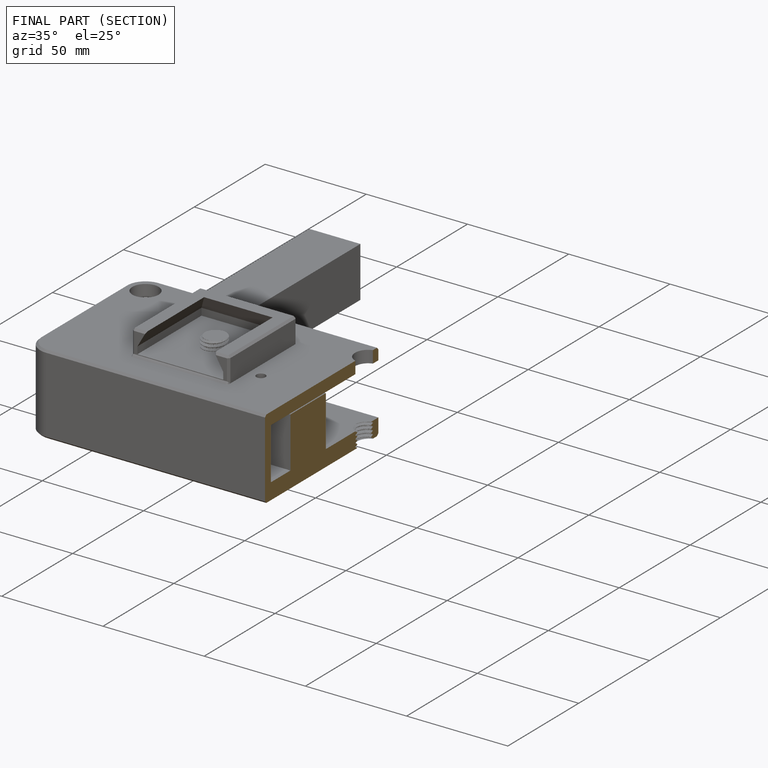
[diagram: finished part — half-section view (interior)]
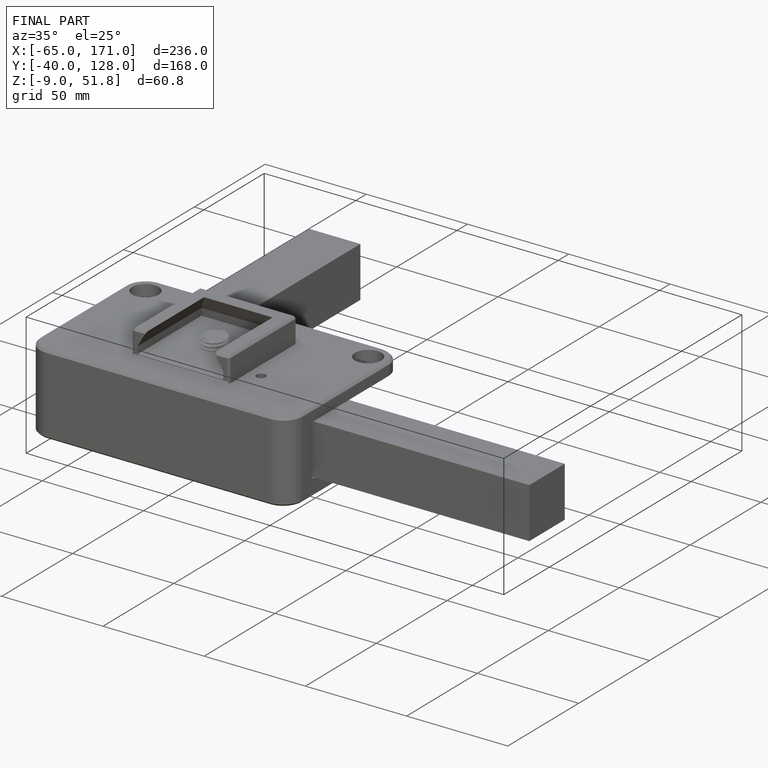
[diagram: finished part — iso view with bounding-box wireframe]
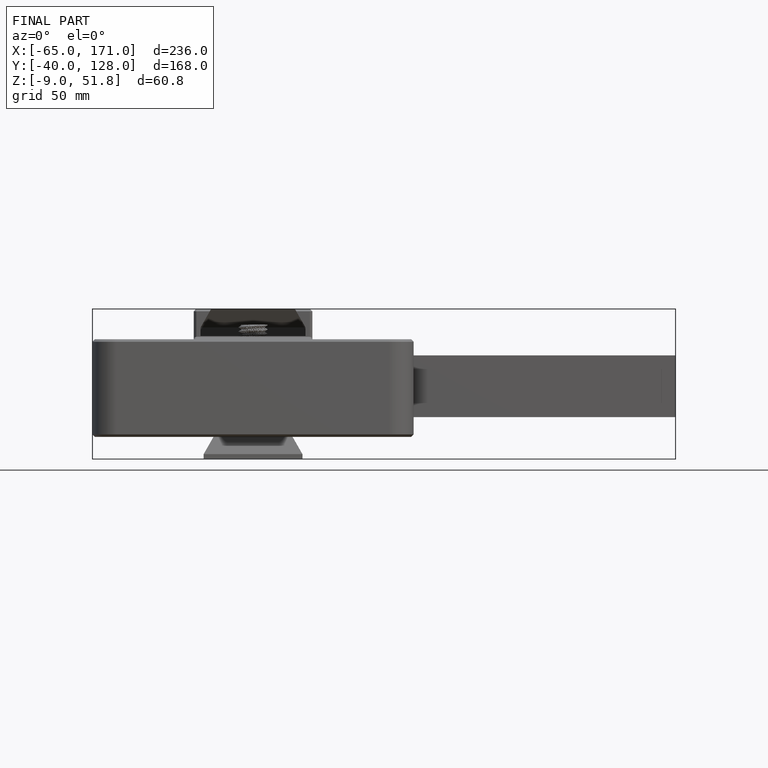
[diagram: finished part — front view with bounding-box wireframe]
